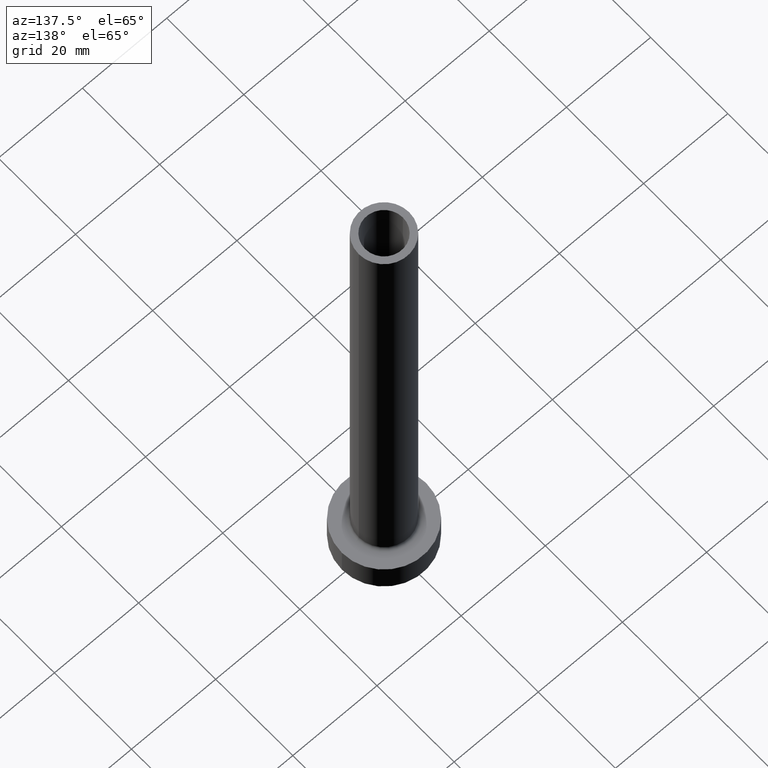
[diagram: clean part render]
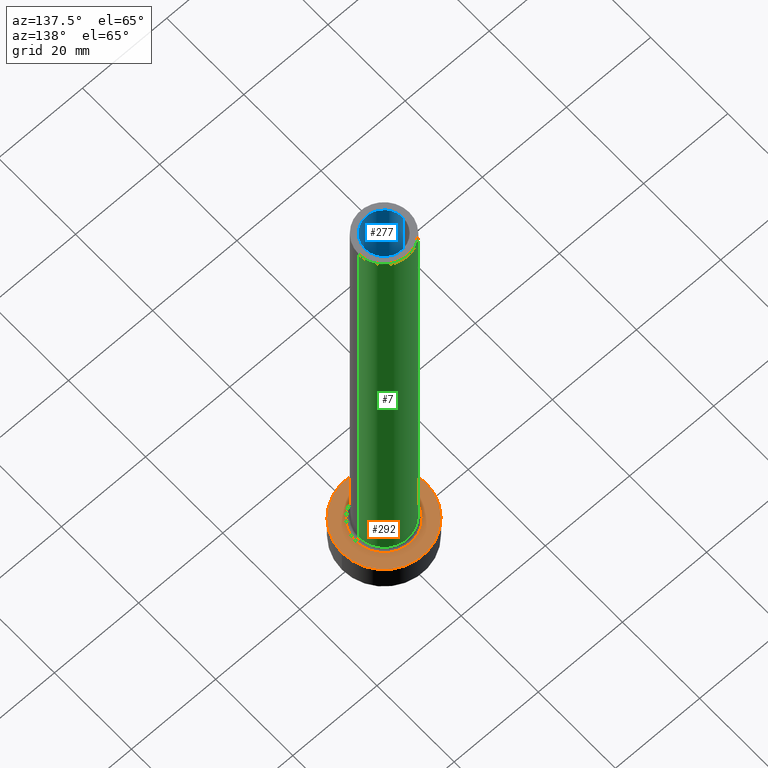
[diagram: same view with three faces highlighted in distinct colors, each labeled with its STEP entity id]
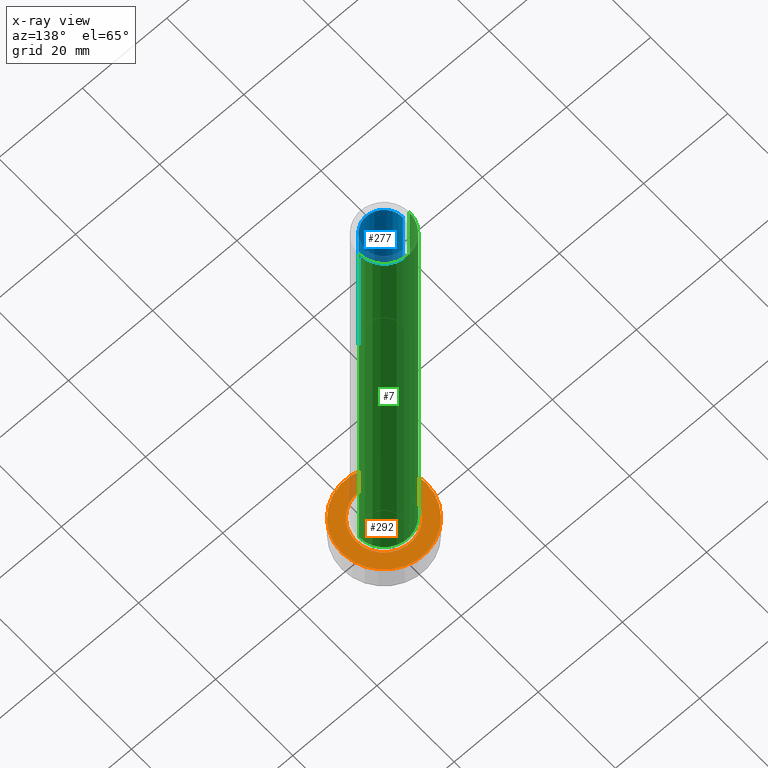
[diagram: x-ray of the same camera — body ghosted, the three highlighted faces saturated]
A machine part, auxiliary view with three faces highlighted in distinct colors.
The next image is the same camera in x-ray (body ghosted, the three faces saturated) — at least one of them is partly hidden behind the body in this view.
Their STEP definitions:

[orange] entity #292 — the highlighted planar face has unit normal (0, 0, 1).
#4 = CIRCLE ( 'NONE', #98, 6.700000000000001066 ) ;
#25 = FACE_OUTER_BOUND ( 'NONE', #167, .T. ) ;
#31 = CIRCLE ( 'NONE', #457, 10.00000000000000000 ) ;
#34 = CARTESIAN_POINT ( 'NONE',  ( -6.700000000000001066, 8.205133554287267548E-16, 6.999999999999999112 ) ) ;
#40 = DIRECTION ( 'NONE',  ( 0.000000000000000000, 0.000000000000000000, 1.000000000000000000 ) ) ;
#58 = ORIENTED_EDGE ( 'NONE', *, *, #173, .T. ) ;
#83 = CARTESIAN_POINT ( 'NONE',  ( 0.000000000000000000, 0.000000000000000000, 7.000000000000000000 ) ) ;
#91 = VERTEX_POINT ( 'NONE', #254 ) ;
#98 = AXIS2_PLACEMENT_3D ( 'NONE', #359, #260, #185 ) ;
#138 = DIRECTION ( 'NONE',  ( 0.000000000000000000, 0.000000000000000000, 1.000000000000000000 ) ) ;
#165 = CARTESIAN_POINT ( 'NONE',  ( 0.000000000000000000, 0.000000000000000000, 7.000000000000000000 ) ) ;
#167 = EDGE_LOOP ( 'NONE', ( #263, #405 ) ) ;
#173 = EDGE_CURVE ( 'NONE', #91, #186, #353, .T. ) ;
#178 = AXIS2_PLACEMENT_3D ( 'NONE', #165, #138, #411 ) ;
#179 = CARTESIAN_POINT ( 'NONE',  ( 0.000000000000000000, 0.000000000000000000, 7.000000000000000000 ) ) ;
#185 = DIRECTION ( 'NONE',  ( 1.000000000000000000, 0.000000000000000000, 0.000000000000000000 ) ) ;
#186 = VERTEX_POINT ( 'NONE', #34 ) ;
#204 = EDGE_CURVE ( 'NONE', #186, #91, #4, .T. ) ;
#208 = VERTEX_POINT ( 'NONE', #291 ) ;
#210 = AXIS2_PLACEMENT_3D ( 'NONE', #179, #347, #350 ) ;
#237 = FACE_BOUND ( 'NONE', #298, .T. ) ;
#254 = CARTESIAN_POINT ( 'NONE',  ( 6.700000000000001066, 0.000000000000000000, 6.999999999999999112 ) ) ;
#257 = CIRCLE ( 'NONE', #284, 10.00000000000000000 ) ;
#260 = DIRECTION ( 'NONE',  ( -0.000000000000000000, -0.000000000000000000, -1.000000000000000000 ) ) ;
#263 = ORIENTED_EDGE ( 'NONE', *, *, #459, .T. ) ;
#284 = AXIS2_PLACEMENT_3D ( 'NONE', #421, #387, #290 ) ;
#290 = DIRECTION ( 'NONE',  ( 1.000000000000000000, 0.000000000000000000, 0.000000000000000000 ) ) ;
#291 = CARTESIAN_POINT ( 'NONE',  ( 10.00000000000000000, 1.224646799147353256E-15, 7.000000000000000000 ) ) ;
#292 = ADVANCED_FACE ( 'NONE', ( #237, #25 ), #444, .T. ) ;
#298 = EDGE_LOOP ( 'NONE', ( #58, #403 ) ) ;
#327 = VERTEX_POINT ( 'NONE', #409 ) ;
#347 = DIRECTION ( 'NONE',  ( -0.000000000000000000, -0.000000000000000000, -1.000000000000000000 ) ) ;
#350 = DIRECTION ( 'NONE',  ( 1.000000000000000000, 0.000000000000000000, 0.000000000000000000 ) ) ;
#353 = CIRCLE ( 'NONE', #210, 6.700000000000001066 ) ;
#359 = CARTESIAN_POINT ( 'NONE',  ( 0.000000000000000000, 0.000000000000000000, 7.000000000000000000 ) ) ;
#387 = DIRECTION ( 'NONE',  ( 0.000000000000000000, 0.000000000000000000, 1.000000000000000000 ) ) ;
#403 = ORIENTED_EDGE ( 'NONE', *, *, #204, .T. ) ;
#405 = ORIENTED_EDGE ( 'NONE', *, *, #442, .T. ) ;
#409 = CARTESIAN_POINT ( 'NONE',  ( -10.00000000000000000, 0.000000000000000000, 7.000000000000000000 ) ) ;
#411 = DIRECTION ( 'NONE',  ( 1.000000000000000000, 0.000000000000000000, -0.000000000000000000 ) ) ;
#421 = CARTESIAN_POINT ( 'NONE',  ( 0.000000000000000000, 0.000000000000000000, 7.000000000000000000 ) ) ;
#442 = EDGE_CURVE ( 'NONE', #208, #327, #257, .T. ) ;
#444 = PLANE ( 'NONE',  #178 ) ;
#457 = AXIS2_PLACEMENT_3D ( 'NONE', #83, #40, #458 ) ;
#458 = DIRECTION ( 'NONE',  ( 1.000000000000000000, 0.000000000000000000, 0.000000000000000000 ) ) ;
#459 = EDGE_CURVE ( 'NONE', #327, #208, #31, .T. ) ;

[blue] entity #277 — the highlighted cylindrical surface (edge-blend (fillet) strip) has radius 4.5 mm, axis along (0, 0, -1).
#1 = CARTESIAN_POINT ( 'NONE',  ( 4.500000000000000000, 5.510910596163087583E-16, 125.0000000000000000 ) ) ;
#16 = ORIENTED_EDGE ( 'NONE', *, *, #349, .T. ) ;
#27 = VERTEX_POINT ( 'NONE', #68 ) ;
#30 = VECTOR ( 'NONE', #108, 1000.000000000000000 ) ;
#36 = DIRECTION ( 'NONE',  ( 0.000000000000000000, 0.000000000000000000, 1.000000000000000000 ) ) ;
#41 = LINE ( 'NONE', #1, #30 ) ;
#53 = ORIENTED_EDGE ( 'NONE', *, *, #88, .F. ) ;
#60 = VECTOR ( 'NONE', #258, 1000.000000000000000 ) ;
#62 = VERTEX_POINT ( 'NONE', #174 ) ;
#65 = CIRCLE ( 'NONE', #163, 4.500000000000000000 ) ;
#68 = CARTESIAN_POINT ( 'NONE',  ( 4.500000000000000000, 5.510910596163087583E-16, 125.0000000000000000 ) ) ;
#69 = CYLINDRICAL_SURFACE ( 'NONE', #116, 4.500000000000000000 ) ;
#71 = DIRECTION ( 'NONE',  ( 0.000000000000000000, 0.000000000000000000, 1.000000000000000000 ) ) ;
#74 = DIRECTION ( 'NONE',  ( 1.000000000000000000, 0.000000000000000000, 0.000000000000000000 ) ) ;
#88 = EDGE_CURVE ( 'NONE', #197, #96, #114, .T. ) ;
#96 = VERTEX_POINT ( 'NONE', #422 ) ;
#108 = DIRECTION ( 'NONE',  ( 0.000000000000000000, 0.000000000000000000, -1.000000000000000000 ) ) ;
#114 = LINE ( 'NONE', #357, #60 ) ;
#116 = AXIS2_PLACEMENT_3D ( 'NONE', #205, #439, #309 ) ;
#119 = CARTESIAN_POINT ( 'NONE',  ( -4.500000000000000000, 0.000000000000000000, 125.0000000000000000 ) ) ;
#129 = EDGE_CURVE ( 'NONE', #27, #62, #41, .T. ) ;
#163 = AXIS2_PLACEMENT_3D ( 'NONE', #379, #71, #209 ) ;
#174 = CARTESIAN_POINT ( 'NONE',  ( 4.500000000000000000, 5.510910596163087583E-16, 80.00000000000000000 ) ) ;
#197 = VERTEX_POINT ( 'NONE', #119 ) ;
#205 = CARTESIAN_POINT ( 'NONE',  ( 0.000000000000000000, 0.000000000000000000, 125.0000000000000000 ) ) ;
#209 = DIRECTION ( 'NONE',  ( 1.000000000000000000, 0.000000000000000000, 0.000000000000000000 ) ) ;
#234 = CIRCLE ( 'NONE', #396, 4.500000000000000000 ) ;
#239 = EDGE_LOOP ( 'NONE', ( #16, #395, #306, #53 ) ) ;
#258 = DIRECTION ( 'NONE',  ( 0.000000000000000000, 0.000000000000000000, -1.000000000000000000 ) ) ;
#277 = ADVANCED_FACE ( 'NONE', ( #303 ), #69, .F. ) ;
#303 = FACE_OUTER_BOUND ( 'NONE', #239, .T. ) ;
#306 = ORIENTED_EDGE ( 'NONE', *, *, #413, .F. ) ;
#309 = DIRECTION ( 'NONE',  ( -1.000000000000000000, 0.000000000000000000, 0.000000000000000000 ) ) ;
#349 = EDGE_CURVE ( 'NONE', #197, #27, #65, .T. ) ;
#357 = CARTESIAN_POINT ( 'NONE',  ( -4.500000000000000000, 0.000000000000000000, 125.0000000000000000 ) ) ;
#379 = CARTESIAN_POINT ( 'NONE',  ( 0.000000000000000000, 0.000000000000000000, 125.0000000000000000 ) ) ;
#395 = ORIENTED_EDGE ( 'NONE', *, *, #129, .T. ) ;
#396 = AXIS2_PLACEMENT_3D ( 'NONE', #461, #36, #74 ) ;
#413 = EDGE_CURVE ( 'NONE', #96, #62, #234, .T. ) ;
#422 = CARTESIAN_POINT ( 'NONE',  ( -4.500000000000000000, 0.000000000000000000, 80.00000000000000000 ) ) ;
#439 = DIRECTION ( 'NONE',  ( 0.000000000000000000, 0.000000000000000000, -1.000000000000000000 ) ) ;
#461 = CARTESIAN_POINT ( 'NONE',  ( 0.000000000000000000, 0.000000000000000000, 80.00000000000000000 ) ) ;

[green] entity #7 — the highlighted cylindrical surface (edge-blend (fillet) strip) has radius 6 mm, axis along (-0, -0, -1).
#7 = ADVANCED_FACE ( 'NONE', ( #344 ), #171, .T. ) ;
#9 = AXIS2_PLACEMENT_3D ( 'NONE', #311, #243, #339 ) ;
#11 = ORIENTED_EDGE ( 'NONE', *, *, #124, .T. ) ;
#15 = VERTEX_POINT ( 'NONE', #198 ) ;
#17 = AXIS2_PLACEMENT_3D ( 'NONE', #117, #153, #319 ) ;
#26 = AXIS2_PLACEMENT_3D ( 'NONE', #43, #147, #73 ) ;
#29 = EDGE_CURVE ( 'NONE', #268, #193, #342, .T. ) ;
#43 = CARTESIAN_POINT ( 'NONE',  ( 0.000000000000000000, 0.000000000000000000, 125.0000000000000000 ) ) ;
#73 = DIRECTION ( 'NONE',  ( 1.000000000000000000, 0.000000000000000000, 0.000000000000000000 ) ) ;
#77 = EDGE_CURVE ( 'NONE', #15, #159, #111, .T. ) ;
#93 = EDGE_CURVE ( 'NONE', #268, #15, #313, .T. ) ;
#97 = CARTESIAN_POINT ( 'NONE',  ( 6.000000000000000888, 7.347880794884120722E-16, 125.0000000000000000 ) ) ;
#111 = LINE ( 'NONE', #419, #299 ) ;
#117 = CARTESIAN_POINT ( 'NONE',  ( 0.000000000000000000, 0.000000000000000000, 7.699999999999998401 ) ) ;
#124 = EDGE_CURVE ( 'NONE', #193, #159, #224, .T. ) ;
#137 = EDGE_LOOP ( 'NONE', ( #363, #235, #11, #336 ) ) ;
#141 = DIRECTION ( 'NONE',  ( -0.000000000000000000, -0.000000000000000000, -1.000000000000000000 ) ) ;
#147 = DIRECTION ( 'NONE',  ( 0.000000000000000000, 0.000000000000000000, 1.000000000000000000 ) ) ;
#153 = DIRECTION ( 'NONE',  ( 0.000000000000000000, 0.000000000000000000, 1.000000000000000000 ) ) ;
#159 = VERTEX_POINT ( 'NONE', #213 ) ;
#171 = CYLINDRICAL_SURFACE ( 'NONE', #9, 6.000000000000000888 ) ;
#176 = VECTOR ( 'NONE', #141, 1000.000000000000000 ) ;
#193 = VERTEX_POINT ( 'NONE', #315 ) ;
#198 = CARTESIAN_POINT ( 'NONE',  ( -6.000000000000000888, 0.000000000000000000, 125.0000000000000000 ) ) ;
#213 = CARTESIAN_POINT ( 'NONE',  ( -6.000000000000000888, 0.000000000000000000, 7.699999999999998401 ) ) ;
#221 = DIRECTION ( 'NONE',  ( -0.000000000000000000, -0.000000000000000000, -1.000000000000000000 ) ) ;
#224 = CIRCLE ( 'NONE', #17, 6.000000000000000888 ) ;
#235 = ORIENTED_EDGE ( 'NONE', *, *, #29, .T. ) ;
#243 = DIRECTION ( 'NONE',  ( -0.000000000000000000, -0.000000000000000000, -1.000000000000000000 ) ) ;
#268 = VERTEX_POINT ( 'NONE', #97 ) ;
#299 = VECTOR ( 'NONE', #221, 1000.000000000000000 ) ;
#311 = CARTESIAN_POINT ( 'NONE',  ( 0.000000000000000000, 0.000000000000000000, 125.0000000000000000 ) ) ;
#313 = CIRCLE ( 'NONE', #26, 6.000000000000000888 ) ;
#315 = CARTESIAN_POINT ( 'NONE',  ( 6.000000000000000888, 7.347880794884120722E-16, 7.699999999999998401 ) ) ;
#319 = DIRECTION ( 'NONE',  ( 1.000000000000000000, 0.000000000000000000, 0.000000000000000000 ) ) ;
#336 = ORIENTED_EDGE ( 'NONE', *, *, #77, .F. ) ;
#339 = DIRECTION ( 'NONE',  ( -1.000000000000000000, 0.000000000000000000, 0.000000000000000000 ) ) ;
#342 = LINE ( 'NONE', #451, #176 ) ;
#344 = FACE_OUTER_BOUND ( 'NONE', #137, .T. ) ;
#363 = ORIENTED_EDGE ( 'NONE', *, *, #93, .F. ) ;
#419 = CARTESIAN_POINT ( 'NONE',  ( -6.000000000000000888, 0.000000000000000000, 125.0000000000000000 ) ) ;
#451 = CARTESIAN_POINT ( 'NONE',  ( 6.000000000000000888, 7.347880794884120722E-16, 125.0000000000000000 ) ) ;